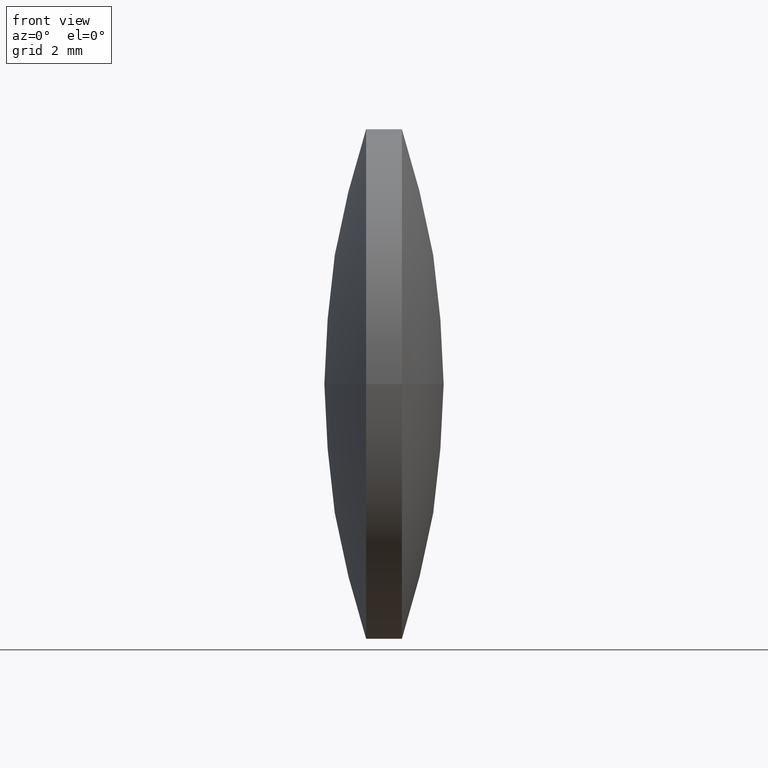
[diagram: clean part render]
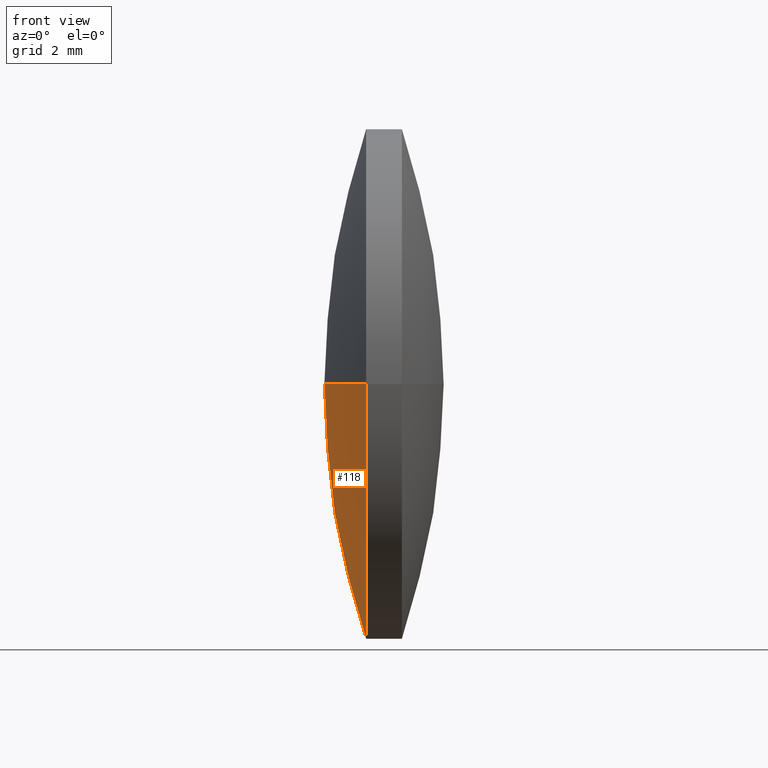
[diagram: same view with one face highlighted and labeled with its STEP entity id]
A machine part, front view. The second image highlights one B-rep face of the part: STEP entity #118.
In plain terms, the highlighted spherical surface has radius 20.1825 mm.
Its self-contained STEP definition (entity closure, byte-faithful):
#2 = DIRECTION ( 'NONE',  ( -2.336600556030481800E-031, 1.224646799147353200E-016, -1.000000000000000000 ) ) ;
#16 = ORIENTED_EDGE ( 'NONE', *, *, #68, .T. ) ;
#25 = DIRECTION ( 'NONE',  ( -2.062849444887929800E-015, 1.000000000000000000, 0.0000000000000000000 ) ) ;
#27 = DIRECTION ( 'NONE',  ( 1.000000000000000000, 0.0000000000000000000, 0.0000000000000000000 ) ) ;
#29 = VERTEX_POINT ( 'NONE', #49 ) ;
#37 = VERTEX_POINT ( 'NONE', #120 ) ;
#39 = AXIS2_PLACEMENT_3D ( 'NONE', #266, #2, #305 ) ;
#49 = CARTESIAN_POINT ( 'NONE',  ( 42.23970917946287100, 24.59517828044028700, 0.0000000000000000000 ) ) ;
#59 = EDGE_LOOP ( 'NONE', ( #254, #16, #116 ) ) ;
#68 = EDGE_CURVE ( 'NONE', #37, #29, #155, .T. ) ;
#107 = DIRECTION ( 'NONE',  ( -1.000000000000000000, -1.907979147667159300E-015, -0.0000000000000000000 ) ) ;
#113 = CIRCLE ( 'NONE', #220, 6.425004895241823300 ) ;
#116 = ORIENTED_EDGE ( 'NONE', *, *, #161, .F. ) ;
#118 = ADVANCED_FACE ( 'NONE', ( #263 ), #257, .T. ) ;
#120 = CARTESIAN_POINT ( 'NONE',  ( 43.28971009732074300, 18.17017338519846000, -7.868361679463981300E-016 ) ) ;
#125 = CARTESIAN_POINT ( 'NONE',  ( 43.28971009732072900, 24.59517828044031900, 0.0000000000000000000 ) ) ;
#145 = DIRECTION ( 'NONE',  ( -0.0000000000000000000, 0.0000000000000000000, -1.000000000000000000 ) ) ;
#146 = CARTESIAN_POINT ( 'NONE',  ( 62.42216288524226500, 24.59517828044032600, 0.0000000000000000000 ) ) ;
#155 = CIRCLE ( 'NONE', #39, 20.18245370577939500 ) ;
#157 = AXIS2_PLACEMENT_3D ( 'NONE', #146, #145, #25 ) ;
#159 = CIRCLE ( 'NONE', #179, 20.18245370577940200 ) ;
#161 = EDGE_CURVE ( 'NONE', #200, #29, #159, .T. ) ;
#179 = AXIS2_PLACEMENT_3D ( 'NONE', #186, #187, #27 ) ;
#186 = CARTESIAN_POINT ( 'NONE',  ( 62.42216288524226500, 24.59517828044032600, 0.0000000000000000000 ) ) ;
#187 = DIRECTION ( 'NONE',  ( -0.0000000000000000000, 0.0000000000000000000, 1.000000000000000000 ) ) ;
#200 = VERTEX_POINT ( 'NONE', #235 ) ;
#220 = AXIS2_PLACEMENT_3D ( 'NONE', #125, #107, #290 ) ;
#235 = CARTESIAN_POINT ( 'NONE',  ( 43.28971009732071500, 31.02018317568214900, 0.0000000000000000000 ) ) ;
#246 = EDGE_CURVE ( 'NONE', #200, #37, #113, .T. ) ;
#254 = ORIENTED_EDGE ( 'NONE', *, *, #246, .T. ) ;
#257 = SPHERICAL_SURFACE ( 'NONE', #157, 20.18245370577939500 ) ;
#263 = FACE_OUTER_BOUND ( 'NONE', #59, .T. ) ;
#266 = CARTESIAN_POINT ( 'NONE',  ( 62.42216288524226500, 24.59517828044032600, 0.0000000000000000000 ) ) ;
#290 = DIRECTION ( 'NONE',  ( 2.159965328289781400E-015, -1.000000000000000000, 0.0000000000000000000 ) ) ;
#305 = DIRECTION ( 'NONE',  ( 0.0000000000000000000, 1.000000000000000000, 1.224646799147353200E-016 ) ) ;